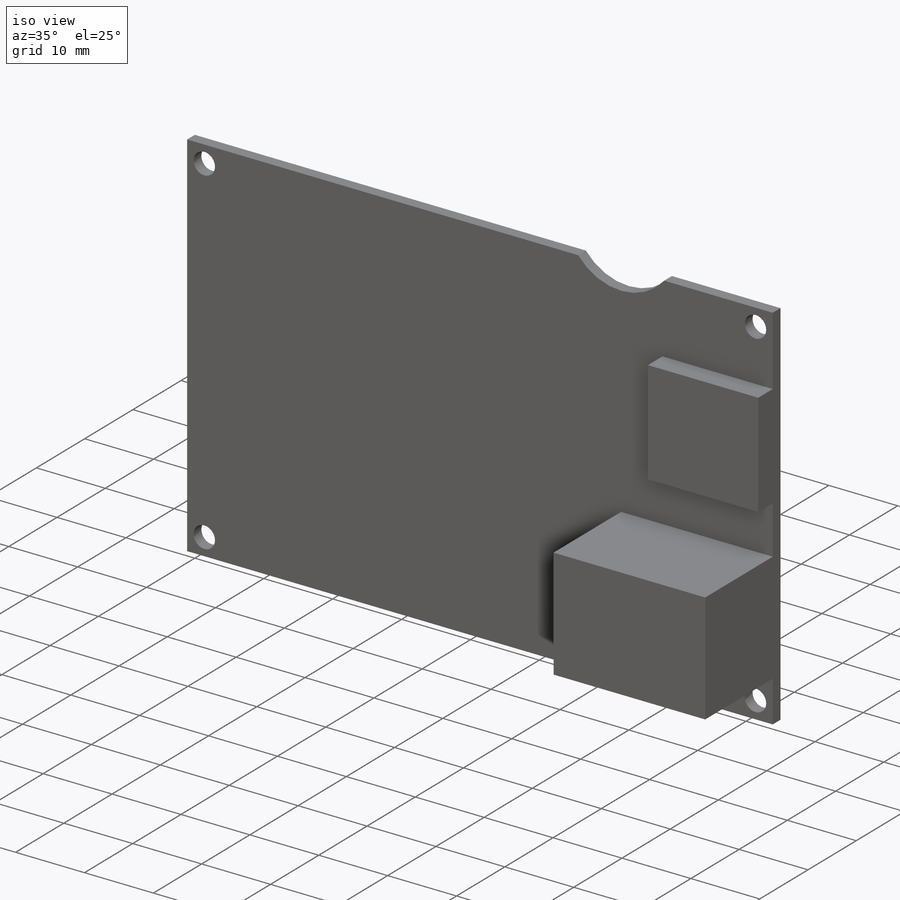
[diagram: iso view]
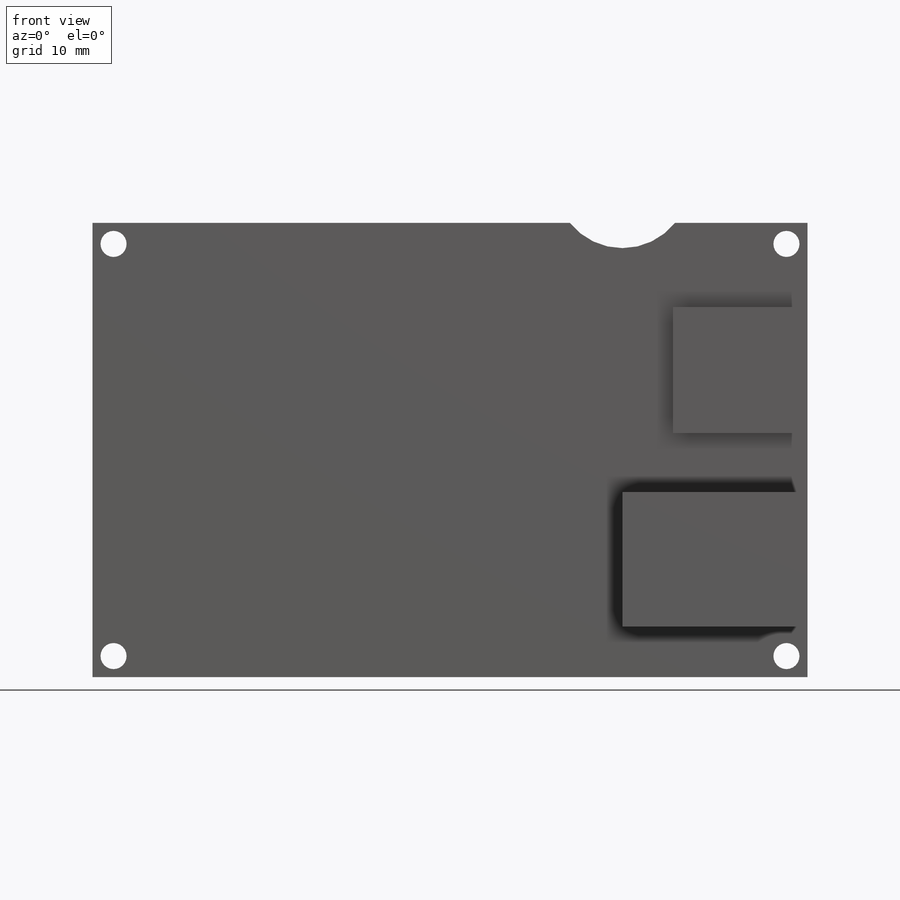
[diagram: front view]
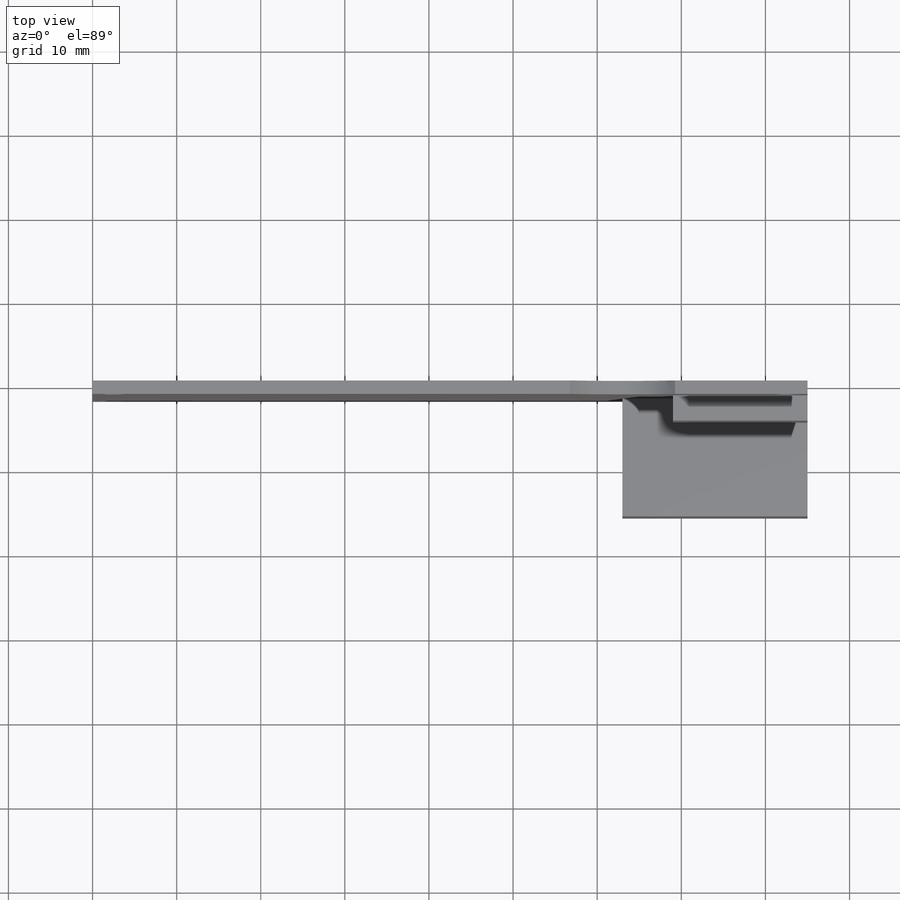
[diagram: top view]
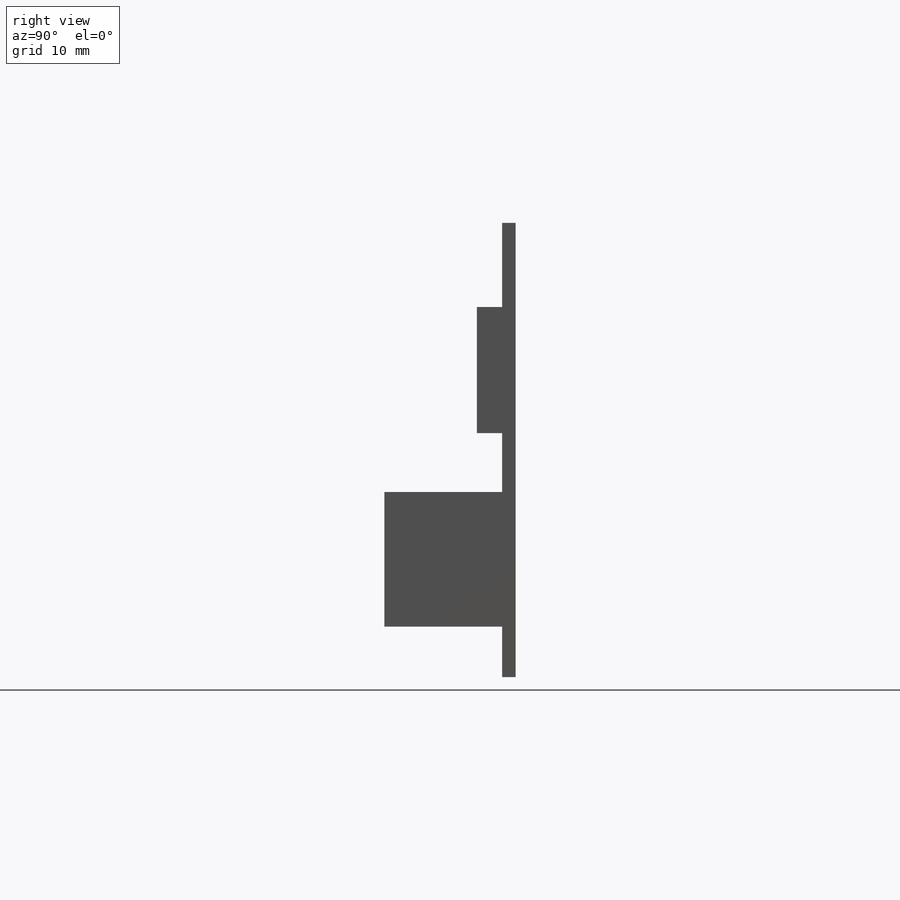
[diagram: right view]
SOLIDWORKS PART (.sldprt)
format: sldprt  version: not decoded by parser v0  size: 229,888 bytes
history: native  units: mm
features: sketch x5, plane x3, extrude x3, material x1, cut_extrude x1 (+13 scaffold rows collapsed)
feature tree (26):
  scaffold x13  (default folders/planes/origin — collapsed)
  material  "Материал <не указан>"
  plane  "Спереди"
  plane  "Сверху"
  plane  "Справа"
  sketch  "Эскиз1"  dims[c1.D6=~3.058505mm c1.D8=~3.058505mm c1.D9=~3.058505mm c1.D10=3.1mm c1.D1=5.0mm c1.D2=7.3mm c1.D3=85.0mm c1.D4=54.0mm c1.D5=31.2mm c2.D6=2.5mm c2.D7=2.5mm c2.D8=2.5mm c2.D9=2.5mm c2.D2=54.0mm c2.D4=2.5mm]
  extrude  "Бобышка-Вытянуть1"  Depth=1.6mm
  sketch  "Эскиз2"  dims[c1.D1=22.0mm c1.D2=16.0mm c1.D3=32.0mm c1.D4=15.0mm c1.D5=16.0mm c1.D6=29.0mm c2.D3=10.0mm c2.D6=6.0mm]
  extrude  "Бобышка-Вытянуть2"  Depth=14mm
  extrude  "Бобышка-Вытянуть3"  [1 undecoded]
  sketch  "Эскиз2<3>"  dims[D1=3.0mm]
  sketch  "Эскиз5"  dims[c1.D1=~9.12599mm c1.D2=8.0mm c2.D1=22.0mm c2.D3=5.0mm]
  cut_extrude  "Вырез-Вытянуть1"  [1 undecoded]
  sketch  "Эскиз3"  dims[c1.D1=32.0mm c1.D2=44.0mm c1.D3=22.0mm c1.D4=~37.215588mm c1.D5=90.0deg c2.D5=21.05mm c2.D6=22.0mm c2.D4=~36.560809mm c2.D1=30.0mm c3.D4=8.0mm c3.D5=10.0mm c3.D6=48.0mm]
decode coverage: 7 of 9 modeling features carry decoded parameters
note: ~ marks probable driven/reference dimensions
note: 2 parameter values undecoded
note: suppression state not decoded; provenance and decode notes live in map.json
